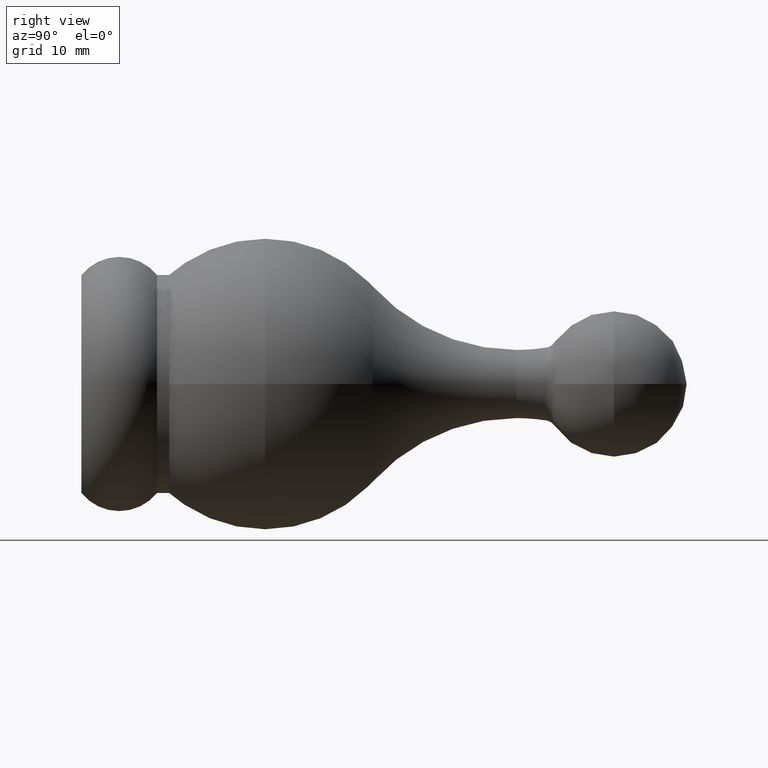
[diagram: clean part render]
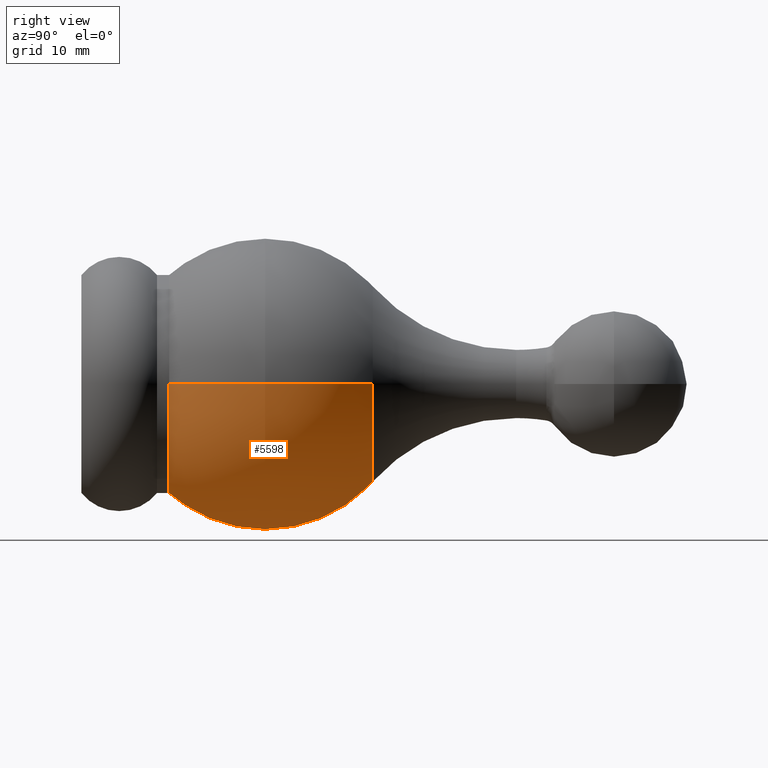
[diagram: same view with one face highlighted and labeled with its STEP entity id]
A machine part, right view. The second image highlights one B-rep face of the part: STEP entity #5598.
In plain terms, the highlighted spherical surface has radius 12 mm.
Its self-contained STEP definition (entity closure, byte-faithful):
#124 = CARTESIAN_POINT ( 'NONE',  ( 0.000000000000000000, 24.06862398283639237, 0.000000000000000000 ) ) ;
#230 = CIRCLE ( 'NONE', #7463, 9.000000000000001776 ) ;
#368 = CARTESIAN_POINT ( 'NONE',  ( -8.064266350193641131, 24.06862398283639237, 1.044884958278126703E-15 ) ) ;
#408 = AXIS2_PLACEMENT_3D ( 'NONE', #5621, #2132, #1298 ) ;
#548 = DIRECTION ( 'NONE',  ( -0.000000000000000000, -1.000000000000000000, -0.000000000000000000 ) ) ;
#566 = EDGE_CURVE ( 'NONE', #9209, #1218, #5015, .T. ) ;
#587 = ORIENTED_EDGE ( 'NONE', *, *, #980, .F. ) ;
#591 = CARTESIAN_POINT ( 'NONE',  ( 0.000000000000000000, 7.244997998398405414, 0.000000000000000000 ) ) ;
#828 = ORIENTED_EDGE ( 'NONE', *, *, #566, .F. ) ;
#980 = EDGE_CURVE ( 'NONE', #2135, #11042, #230, .T. ) ;
#1027 = DIRECTION ( 'NONE',  ( -0.000000000000000000, -1.000000000000000000, -0.000000000000000000 ) ) ;
#1057 = EDGE_CURVE ( 'NONE', #5616, #11042, #4891, .T. ) ;
#1218 = VERTEX_POINT ( 'NONE', #2293 ) ;
#1298 = DIRECTION ( 'NONE',  ( 1.000000000000000000, 0.000000000000000000, 0.000000000000000000 ) ) ;
#1653 = CARTESIAN_POINT ( 'NONE',  ( 0.000000000000000000, 7.244997998398405414, -9.000000000000001776 ) ) ;
#2009 = DIRECTION ( 'NONE',  ( 0.000000000000000000, 0.000000000000000000, -1.000000000000000000 ) ) ;
#2132 = DIRECTION ( 'NONE',  ( 0.000000000000000000, 0.000000000000000000, 1.000000000000000000 ) ) ;
#2135 = VERTEX_POINT ( 'NONE', #1653 ) ;
#2293 = CARTESIAN_POINT ( 'NONE',  ( -9.000000000000001776, 7.244997998398405414, 1.102182119232617911E-15 ) ) ;
#2899 = CIRCLE ( 'NONE', #6056, 8.064266350193641131 ) ;
#2908 = DIRECTION ( 'NONE',  ( -0.000000000000000000, -1.000000000000000000, -0.000000000000000000 ) ) ;
#3299 = EDGE_CURVE ( 'NONE', #8316, #5616, #2899, .T. ) ;
#3709 = AXIS2_PLACEMENT_3D ( 'NONE', #5380, #1027, #5417 ) ;
#3825 = CIRCLE ( 'NONE', #3709, 9.000000000000001776 ) ;
#4106 = AXIS2_PLACEMENT_3D ( 'NONE', #5609, #2908, #2009 ) ;
#4187 = EDGE_CURVE ( 'NONE', #9209, #8316, #8898, .T. ) ;
#4599 = DIRECTION ( 'NONE',  ( -0.000000000000000000, -1.000000000000000000, -0.000000000000000000 ) ) ;
#4891 = CIRCLE ( 'NONE', #5688, 12.00000000000000000 ) ;
#5015 = CIRCLE ( 'NONE', #7155, 12.00000000000000000 ) ;
#5380 = CARTESIAN_POINT ( 'NONE',  ( 0.000000000000000000, 7.244997998398405414, 0.000000000000000000 ) ) ;
#5417 = DIRECTION ( 'NONE',  ( 0.000000000000000000, 0.000000000000000000, -1.000000000000000000 ) ) ;
#5531 = CARTESIAN_POINT ( 'NONE',  ( 8.064266350193641131, 24.06862398283639237, 0.000000000000000000 ) ) ;
#5598 = ADVANCED_FACE ( 'NONE', ( #8212 ), #7255, .T. ) ;
#5609 = CARTESIAN_POINT ( 'NONE',  ( 0.000000000000000000, 24.06862398283639237, 0.000000000000000000 ) ) ;
#5616 = VERTEX_POINT ( 'NONE', #5531 ) ;
#5621 = CARTESIAN_POINT ( 'NONE',  ( 0.000000000000000000, 15.18225193159217312, 0.000000000000000000 ) ) ;
#5688 = AXIS2_PLACEMENT_3D ( 'NONE', #9883, #9841, #10736 ) ;
#5800 = DIRECTION ( 'NONE',  ( 0.000000000000000000, 0.000000000000000000, -1.000000000000000000 ) ) ;
#6056 = AXIS2_PLACEMENT_3D ( 'NONE', #124, #4599, #7129 ) ;
#7077 = EDGE_CURVE ( 'NONE', #1218, #2135, #3825, .T. ) ;
#7129 = DIRECTION ( 'NONE',  ( 0.000000000000000000, 0.000000000000000000, -1.000000000000000000 ) ) ;
#7155 = AXIS2_PLACEMENT_3D ( 'NONE', #9041, #9192, #10871 ) ;
#7255 = SPHERICAL_SURFACE ( 'NONE', #408, 12.00000000000000000 ) ;
#7463 = AXIS2_PLACEMENT_3D ( 'NONE', #591, #548, #5800 ) ;
#7505 = EDGE_LOOP ( 'NONE', ( #828, #9970, #7927, #7747, #587, #10146 ) ) ;
#7747 = ORIENTED_EDGE ( 'NONE', *, *, #1057, .T. ) ;
#7927 = ORIENTED_EDGE ( 'NONE', *, *, #3299, .T. ) ;
#8212 = FACE_OUTER_BOUND ( 'NONE', #7505, .T. ) ;
#8316 = VERTEX_POINT ( 'NONE', #8871 ) ;
#8871 = CARTESIAN_POINT ( 'NONE',  ( 0.000000000000000000, 24.06862398283639237, -8.064266350193641131 ) ) ;
#8898 = CIRCLE ( 'NONE', #4106, 8.064266350193641131 ) ;
#9041 = CARTESIAN_POINT ( 'NONE',  ( 0.000000000000000000, 15.18225193159217312, 0.000000000000000000 ) ) ;
#9192 = DIRECTION ( 'NONE',  ( 1.224646799147353207E-16, -0.000000000000000000, 1.000000000000000000 ) ) ;
#9209 = VERTEX_POINT ( 'NONE', #368 ) ;
#9808 = CARTESIAN_POINT ( 'NONE',  ( 9.000000000000001776, 7.244997998398405414, 0.000000000000000000 ) ) ;
#9841 = DIRECTION ( 'NONE',  ( 0.000000000000000000, 0.000000000000000000, -1.000000000000000000 ) ) ;
#9883 = CARTESIAN_POINT ( 'NONE',  ( 0.000000000000000000, 15.18225193159217312, 0.000000000000000000 ) ) ;
#9970 = ORIENTED_EDGE ( 'NONE', *, *, #4187, .T. ) ;
#10146 = ORIENTED_EDGE ( 'NONE', *, *, #7077, .F. ) ;
#10736 = DIRECTION ( 'NONE',  ( -1.000000000000000000, 0.000000000000000000, 0.000000000000000000 ) ) ;
#10871 = DIRECTION ( 'NONE',  ( 1.000000000000000000, 0.000000000000000000, -1.224646799147353207E-16 ) ) ;
#11042 = VERTEX_POINT ( 'NONE', #9808 ) ;